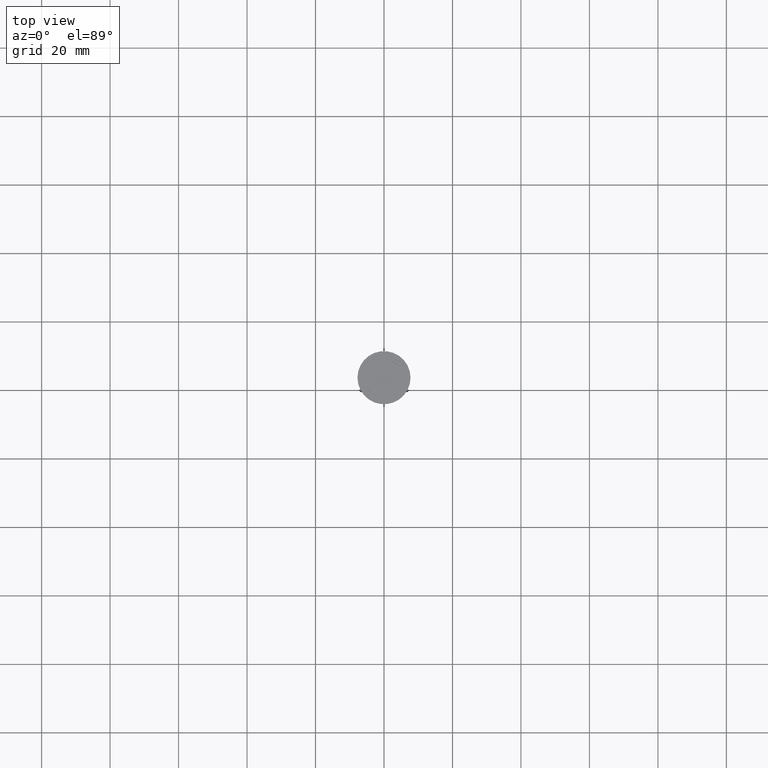
[diagram: clean part render]
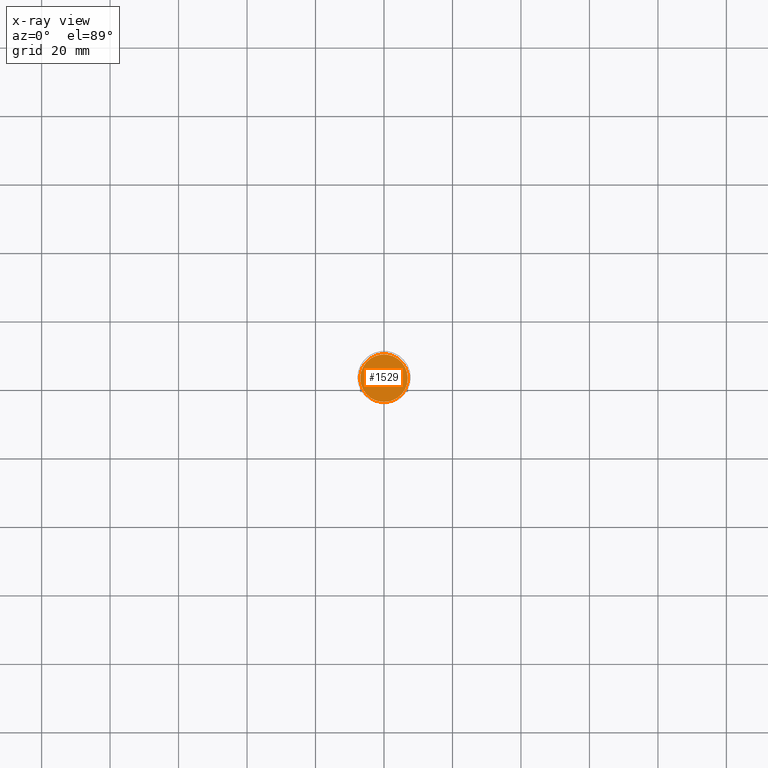
[diagram: x-ray — body ghosted, one internal face saturated and labeled with its STEP entity id]
A machine part, top view, then the same camera in x-ray: the body is ghosted and one INTERNAL B-rep face — a face not visible from any outside direction — is saturated and labeled: STEP entity #1529.
In plain terms, the highlighted planar face has unit normal (0, 0, -1).
Its self-contained STEP definition (entity closure, byte-faithful):
#6 = FACE_OUTER_BOUND ( 'NONE', #361, .T. ) ;
#152 = ORIENTED_EDGE ( 'NONE', *, *, #1888, .T. ) ;
#311 = VERTEX_POINT ( 'NONE', #401 ) ;
#361 = EDGE_LOOP ( 'NONE', ( #152, #688 ) ) ;
#401 = CARTESIAN_POINT ( 'NONE',  ( 6.950000000000001066, 8.694992273946209718E-16, -10.50000000000000178 ) ) ;
#554 = DIRECTION ( 'NONE',  ( 0.000000000000000000, 0.000000000000000000, -1.000000000000000000 ) ) ;
#645 = EDGE_CURVE ( 'NONE', #311, #1905, #2137, .T. ) ;
#688 = ORIENTED_EDGE ( 'NONE', *, *, #645, .T. ) ;
#700 = AXIS2_PLACEMENT_3D ( 'NONE', #918, #554, #1812 ) ;
#849 = CIRCLE ( 'NONE', #2097, 6.950000000000001066 ) ;
#870 = CARTESIAN_POINT ( 'NONE',  ( 0.000000000000000000, 0.000000000000000000, -10.50000000000000178 ) ) ;
#918 = CARTESIAN_POINT ( 'NONE',  ( 0.000000000000000000, 0.000000000000000000, -10.50000000000000178 ) ) ;
#934 = PLANE ( 'NONE',  #700 ) ;
#1196 = DIRECTION ( 'NONE',  ( -1.000000000000000000, 0.000000000000000000, 0.000000000000000000 ) ) ;
#1360 = CARTESIAN_POINT ( 'NONE',  ( -6.950000000000001066, 0.000000000000000000, -10.50000000000000178 ) ) ;
#1364 = DIRECTION ( 'NONE',  ( -1.000000000000000000, 0.000000000000000000, 0.000000000000000000 ) ) ;
#1372 = DIRECTION ( 'NONE',  ( -0.000000000000000000, -0.000000000000000000, 1.000000000000000000 ) ) ;
#1529 = ADVANCED_FACE ( 'NONE', ( #6 ), #934, .F. ) ;
#1609 = AXIS2_PLACEMENT_3D ( 'NONE', #1747, #2272, #1364 ) ;
#1747 = CARTESIAN_POINT ( 'NONE',  ( 0.000000000000000000, 0.000000000000000000, -10.50000000000000178 ) ) ;
#1812 = DIRECTION ( 'NONE',  ( -1.000000000000000000, 0.000000000000000000, -0.000000000000000000 ) ) ;
#1888 = EDGE_CURVE ( 'NONE', #1905, #311, #849, .T. ) ;
#1905 = VERTEX_POINT ( 'NONE', #1360 ) ;
#2097 = AXIS2_PLACEMENT_3D ( 'NONE', #870, #1372, #1196 ) ;
#2137 = CIRCLE ( 'NONE', #1609, 6.950000000000001066 ) ;
#2272 = DIRECTION ( 'NONE',  ( -0.000000000000000000, -0.000000000000000000, 1.000000000000000000 ) ) ;